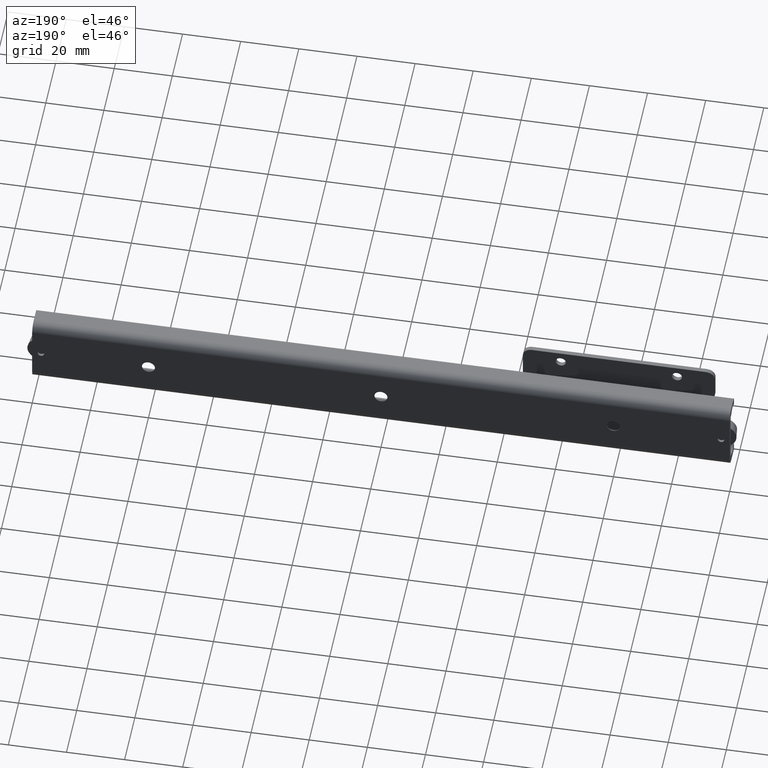
[diagram: clean part render]
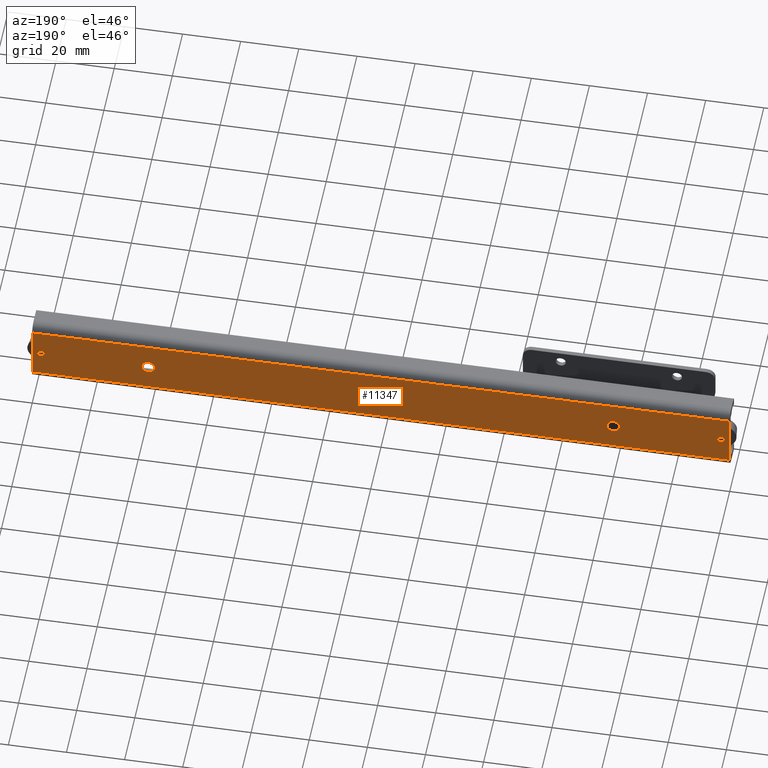
[diagram: same view with one face highlighted and labeled with its STEP entity id]
A machine part, auxiliary view. The second image highlights one B-rep face of the part: STEP entity #11347.
In plain terms, the highlighted face is a freeform B-spline surface patch.
Its self-contained STEP definition (entity closure, byte-faithful):
#9783=CARTESIAN_POINT('',(237.0,0.0,1.150000000000000));
#9784=VERTEX_POINT('',#9783);
#9785=CARTESIAN_POINT('',(235.853545066666610,-1.387779E-016,0.090227965929010));
#9786=VERTEX_POINT('',#9785);
#9787=CARTESIAN_POINT('',(237.0,0.0,1.150000000000000));
#9788=CARTESIAN_POINT('',(235.936950940026830,0.0,1.150000000000000));
#9789=CARTESIAN_POINT('',(235.853545066666640,0.0,0.090227965929010));
#9797=(BOUNDED_CURVE()B_SPLINE_CURVE(2,(#9787,#9788,#9789),.UNSPECIFIED.,.F.,.U.)B_SPLINE_CURVE_WITH_KNOTS((3,3),(0.0,0.236331299759240),.UNSPECIFIED.)CURVE()GEOMETRIC_REPRESENTATION_ITEM()RATIONAL_B_SPLINE_CURVE((1.0,0.723120659628598,0.969723354348830))REPRESENTATION_ITEM(''));
#9798=EDGE_CURVE('',#9784,#9786,#9797,.T.);
#9800=CARTESIAN_POINT('',(238.146454933333300,-1.387779E-016,-0.090227965929008));
#9801=VERTEX_POINT('',#9800);
#9802=CARTESIAN_POINT('',(238.146454933333330,0.0,-0.090227965929008));
#9803=CARTESIAN_POINT('',(238.149999999999980,0.0,-0.045183625993369));
#9804=CARTESIAN_POINT('',(238.150000000000010,0.0,0.0));
#9805=CARTESIAN_POINT('',(238.150000000000030,0.0,1.150000000000000));
#9806=CARTESIAN_POINT('',(237.0,0.0,1.150000000000000));
#9814=(BOUNDED_CURVE()B_SPLINE_CURVE(2,(#9802,#9803,#9804,#9805,#9806),.UNSPECIFIED.,.F.,.U.)B_SPLINE_CURVE_WITH_KNOTS((3,2,3),(0.736331299759240,0.750000000000000,1.0),.UNSPECIFIED.)CURVE()GEOMETRIC_REPRESENTATION_ITEM()RATIONAL_B_SPLINE_CURVE((0.969723354348831,0.983986121557950,1.0,0.707106781186547,1.0))REPRESENTATION_ITEM(''));
#9815=EDGE_CURVE('',#9801,#9784,#9814,.T.);
#9882=CARTESIAN_POINT('',(237.0,0.0,-1.150000000000000));
#9883=VERTEX_POINT('',#9882);
#9884=CARTESIAN_POINT('',(235.853545066666640,0.0,0.090227965929010));
#9885=CARTESIAN_POINT('',(235.849999999999970,0.0,0.045183625993369));
#9886=CARTESIAN_POINT('',(235.849999999999990,0.0,0.0));
#9887=CARTESIAN_POINT('',(235.849999999999990,0.0,-1.150000000000000));
#9888=CARTESIAN_POINT('',(237.0,0.0,-1.150000000000000));
#9896=(BOUNDED_CURVE()B_SPLINE_CURVE(2,(#9884,#9885,#9886,#9887,#9888),.UNSPECIFIED.,.F.,.U.)B_SPLINE_CURVE_WITH_KNOTS((3,2,3),(0.236331299759240,0.250000000000000,0.500000000000000),.UNSPECIFIED.)CURVE()GEOMETRIC_REPRESENTATION_ITEM()RATIONAL_B_SPLINE_CURVE((0.969723354348830,0.983986121557950,1.0,0.707106781186547,1.0))REPRESENTATION_ITEM(''));
#9897=EDGE_CURVE('',#9786,#9883,#9896,.T.);
#9931=CARTESIAN_POINT('',(237.0,0.0,-1.150000000000000));
#9932=CARTESIAN_POINT('',(238.063049059973220,0.0,-1.150000000000000));
#9933=CARTESIAN_POINT('',(238.146454933333300,0.0,-0.090227965929010));
#9941=(BOUNDED_CURVE()B_SPLINE_CURVE(2,(#9931,#9932,#9933),.UNSPECIFIED.,.F.,.U.)B_SPLINE_CURVE_WITH_KNOTS((3,3),(0.500000000000000,0.736331299759239),.UNSPECIFIED.)CURVE()GEOMETRIC_REPRESENTATION_ITEM()RATIONAL_B_SPLINE_CURVE((1.0,0.723120659628598,0.969723354348830))REPRESENTATION_ITEM(''));
#9942=EDGE_CURVE('',#9883,#9801,#9941,.T.);
#9965=CARTESIAN_POINT('',(3.0,0.0,1.150000000000000));
#9966=VERTEX_POINT('',#9965);
#9967=CARTESIAN_POINT('',(1.853545066666678,-1.387779E-016,0.090227965929009));
#9968=VERTEX_POINT('',#9967);
#9969=CARTESIAN_POINT('',(3.0,0.0,1.150000000000000));
#9970=CARTESIAN_POINT('',(1.936950940026789,0.0,1.150000000000000));
#9971=CARTESIAN_POINT('',(1.853545066666677,0.0,0.090227965929009));
#9979=(BOUNDED_CURVE()B_SPLINE_CURVE(2,(#9969,#9970,#9971),.UNSPECIFIED.,.F.,.U.)B_SPLINE_CURVE_WITH_KNOTS((3,3),(0.0,0.236331299759240),.UNSPECIFIED.)CURVE()GEOMETRIC_REPRESENTATION_ITEM()RATIONAL_B_SPLINE_CURVE((1.0,0.723120659628598,0.969723354348831))REPRESENTATION_ITEM(''));
#9980=EDGE_CURVE('',#9966,#9968,#9979,.T.);
#9982=CARTESIAN_POINT('',(4.146454933333322,-1.387779E-016,-0.090227965929009));
#9983=VERTEX_POINT('',#9982);
#9984=CARTESIAN_POINT('',(4.146454933333325,0.0,-0.090227965929010));
#9985=CARTESIAN_POINT('',(4.150000000000000,0.0,-0.045183625993369));
#9986=CARTESIAN_POINT('',(4.150000000000000,0.0,0.0));
#9987=CARTESIAN_POINT('',(4.150000000000000,0.0,1.150000000000000));
#9988=CARTESIAN_POINT('',(3.0,0.0,1.150000000000000));
#9996=(BOUNDED_CURVE()B_SPLINE_CURVE(2,(#9984,#9985,#9986,#9987,#9988),.UNSPECIFIED.,.F.,.U.)B_SPLINE_CURVE_WITH_KNOTS((3,2,3),(0.736331299759240,0.750000000000000,1.0),.UNSPECIFIED.)CURVE()GEOMETRIC_REPRESENTATION_ITEM()RATIONAL_B_SPLINE_CURVE((0.969723354348830,0.983986121557950,1.0,0.707106781186547,1.0))REPRESENTATION_ITEM(''));
#9997=EDGE_CURVE('',#9983,#9966,#9996,.T.);
#10064=CARTESIAN_POINT('',(3.0,0.0,-1.150000000000000));
#10065=VERTEX_POINT('',#10064);
#10066=CARTESIAN_POINT('',(1.853545066666677,0.0,0.090227965929009));
#10067=CARTESIAN_POINT('',(1.850000000000000,0.0,0.045183625993369));
#10068=CARTESIAN_POINT('',(1.850000000000000,0.0,0.0));
#10069=CARTESIAN_POINT('',(1.850000000000000,0.0,-1.150000000000000));
#10070=CARTESIAN_POINT('',(3.0,0.0,-1.150000000000000));
#10078=(BOUNDED_CURVE()B_SPLINE_CURVE(2,(#10066,#10067,#10068,#10069,#10070),.UNSPECIFIED.,.F.,.U.)B_SPLINE_CURVE_WITH_KNOTS((3,2,3),(0.236331299759240,0.250000000000000,0.500000000000000),.UNSPECIFIED.)CURVE()GEOMETRIC_REPRESENTATION_ITEM()RATIONAL_B_SPLINE_CURVE((0.969723354348831,0.983986121557950,1.0,0.707106781186547,1.0))REPRESENTATION_ITEM(''));
#10079=EDGE_CURVE('',#9968,#10065,#10078,.T.);
#10113=CARTESIAN_POINT('',(3.0,0.0,-1.150000000000000));
#10114=CARTESIAN_POINT('',(4.063049059973211,0.0,-1.150000000000000));
#10115=CARTESIAN_POINT('',(4.146454933333325,0.0,-0.090227965929010));
#10123=(BOUNDED_CURVE()B_SPLINE_CURVE(2,(#10113,#10114,#10115),.UNSPECIFIED.,.F.,.U.)B_SPLINE_CURVE_WITH_KNOTS((3,3),(0.500000000000000,0.736331299759240),.UNSPECIFIED.)CURVE()GEOMETRIC_REPRESENTATION_ITEM()RATIONAL_B_SPLINE_CURVE((1.0,0.723120659628598,0.969723354348830))REPRESENTATION_ITEM(''));
#10124=EDGE_CURVE('',#10065,#9983,#10123,.T.);
#10147=CARTESIAN_POINT('',(42.245803296253619,2.989608E-014,-0.137359217151128));
#10148=VERTEX_POINT('',#10147);
#10188=CARTESIAN_POINT('',(37.754196703746381,2.990475E-014,0.137359217151127));
#10189=VERTEX_POINT('',#10188);
#10195=CARTESIAN_POINT('',(40.0,2.990027E-014,2.250000000000000));
#10196=VERTEX_POINT('',#10195);
#10197=CARTESIAN_POINT('',(40.0,2.990027E-014,2.250000000000000));
#10198=CARTESIAN_POINT('',(37.883411352481545,2.990027E-014,2.250000000000000));
#10199=CARTESIAN_POINT('',(37.754196703746373,2.990027E-014,0.137359217151127));
#10207=(BOUNDED_CURVE()B_SPLINE_CURVE(2,(#10197,#10198,#10199),.UNSPECIFIED.,.F.,.U.)B_SPLINE_CURVE_WITH_KNOTS((3,3),(0.500000000000000,0.739332961996287),.UNSPECIFIED.)CURVE()GEOMETRIC_REPRESENTATION_ITEM()RATIONAL_B_SPLINE_CURVE((1.0,0.719603993571000,0.976072041146659))REPRESENTATION_ITEM(''));
#10208=EDGE_CURVE('',#10196,#10189,#10207,.T.);
#10210=CARTESIAN_POINT('',(42.245803296253619,2.990027E-014,-0.137359217151128));
#10211=CARTESIAN_POINT('',(42.250000000000000,2.990027E-014,-0.068743719025158));
#10212=CARTESIAN_POINT('',(42.250000000000000,2.990027E-014,0.0));
#10213=CARTESIAN_POINT('',(42.250000000000000,2.990027E-014,2.250000000000000));
#10214=CARTESIAN_POINT('',(40.0,2.990027E-014,2.250000000000000));
#10222=(BOUNDED_CURVE()B_SPLINE_CURVE(2,(#10210,#10211,#10212,#10213,#10214),.UNSPECIFIED.,.F.,.U.)B_SPLINE_CURVE_WITH_KNOTS((3,2,3),(0.239332961996287,0.250000000000000,0.500000000000000),.UNSPECIFIED.)CURVE()GEOMETRIC_REPRESENTATION_ITEM()RATIONAL_B_SPLINE_CURVE((0.976072041146659,0.987502787615548,1.0,0.707106781186547,1.0))REPRESENTATION_ITEM(''));
#10223=EDGE_CURVE('',#10148,#10196,#10222,.T.);
#10247=CARTESIAN_POINT('',(40.0,2.990027E-014,-2.250000000000000));
#10248=VERTEX_POINT('',#10247);
#10249=CARTESIAN_POINT('',(40.0,2.990027E-014,-2.250000000000000));
#10250=CARTESIAN_POINT('',(42.116588647518455,2.990027E-014,-2.250000000000000));
#10251=CARTESIAN_POINT('',(42.245803296253619,2.990027E-014,-0.137359217151128));
#10259=(BOUNDED_CURVE()B_SPLINE_CURVE(2,(#10249,#10250,#10251),.UNSPECIFIED.,.F.,.U.)B_SPLINE_CURVE_WITH_KNOTS((3,3),(0.0,0.239332961996287),.UNSPECIFIED.)CURVE()GEOMETRIC_REPRESENTATION_ITEM()RATIONAL_B_SPLINE_CURVE((1.0,0.719603993571000,0.976072041146659))REPRESENTATION_ITEM(''));
#10260=EDGE_CURVE('',#10248,#10148,#10259,.T.);
#10262=CARTESIAN_POINT('',(37.754196703746373,2.990027E-014,0.137359217151127));
#10263=CARTESIAN_POINT('',(37.750000000000000,2.990027E-014,0.068743719025158));
#10264=CARTESIAN_POINT('',(37.750000000000000,2.990027E-014,0.0));
#10265=CARTESIAN_POINT('',(37.750000000000007,2.990027E-014,-2.250000000000000));
#10266=CARTESIAN_POINT('',(40.0,2.990027E-014,-2.250000000000000));
#10274=(BOUNDED_CURVE()B_SPLINE_CURVE(2,(#10262,#10263,#10264,#10265,#10266),.UNSPECIFIED.,.F.,.U.)B_SPLINE_CURVE_WITH_KNOTS((3,2,3),(0.739332961996287,0.750000000000000,1.0),.UNSPECIFIED.)CURVE()GEOMETRIC_REPRESENTATION_ITEM()RATIONAL_B_SPLINE_CURVE((0.976072041146659,0.987502787615548,1.0,0.707106781186547,1.0))REPRESENTATION_ITEM(''));
#10275=EDGE_CURVE('',#10189,#10248,#10274,.T.);
#10451=CARTESIAN_POINT('',(122.245803296253600,3.876052E-014,-0.137359217151128));
#10452=VERTEX_POINT('',#10451);
#10492=CARTESIAN_POINT('',(117.754196703746400,3.876052E-014,0.137359217151128));
#10493=VERTEX_POINT('',#10492);
#10499=CARTESIAN_POINT('',(120.0,3.875517E-014,2.250000000000000));
#10500=VERTEX_POINT('',#10499);
#10501=CARTESIAN_POINT('',(120.0,3.875517E-014,2.250000000000000));
#10502=CARTESIAN_POINT('',(117.883411352481530,3.875517E-014,2.250000000000001));
#10503=CARTESIAN_POINT('',(117.754196703746370,3.875517E-014,0.137359217151129));
#10511=(BOUNDED_CURVE()B_SPLINE_CURVE(2,(#10501,#10502,#10503),.UNSPECIFIED.,.F.,.U.)B_SPLINE_CURVE_WITH_KNOTS((3,3),(0.500000000000000,0.739332961996287),.UNSPECIFIED.)CURVE()GEOMETRIC_REPRESENTATION_ITEM()RATIONAL_B_SPLINE_CURVE((1.0,0.719603993571000,0.976072041146659))REPRESENTATION_ITEM(''));
#10512=EDGE_CURVE('',#10500,#10493,#10511,.T.);
#10514=CARTESIAN_POINT('',(122.245803296253670,3.875517E-014,-0.137359217151128));
#10515=CARTESIAN_POINT('',(122.249999999999990,3.875517E-014,-0.068743719025158));
#10516=CARTESIAN_POINT('',(122.250000000000000,3.875517E-014,0.0));
#10517=CARTESIAN_POINT('',(122.250000000000000,3.875517E-014,2.250000000000000));
#10518=CARTESIAN_POINT('',(120.0,3.875517E-014,2.250000000000000));
#10526=(BOUNDED_CURVE()B_SPLINE_CURVE(2,(#10514,#10515,#10516,#10517,#10518),.UNSPECIFIED.,.F.,.U.)B_SPLINE_CURVE_WITH_KNOTS((3,2,3),(0.239332961996287,0.250000000000000,0.500000000000000),.UNSPECIFIED.)CURVE()GEOMETRIC_REPRESENTATION_ITEM()RATIONAL_B_SPLINE_CURVE((0.976072041146659,0.987502787615548,1.0,0.707106781186547,1.0))REPRESENTATION_ITEM(''));
#10527=EDGE_CURVE('',#10452,#10500,#10526,.T.);
#10551=CARTESIAN_POINT('',(120.0,3.875517E-014,-2.250000000000000));
#10552=VERTEX_POINT('',#10551);
#10553=CARTESIAN_POINT('',(120.0,3.875517E-014,-2.250000000000000));
#10554=CARTESIAN_POINT('',(122.116588647518470,3.875517E-014,-2.250000000000000));
#10555=CARTESIAN_POINT('',(122.245803296253670,3.875517E-014,-0.137359217151128));
#10563=(BOUNDED_CURVE()B_SPLINE_CURVE(2,(#10553,#10554,#10555),.UNSPECIFIED.,.F.,.U.)B_SPLINE_CURVE_WITH_KNOTS((3,3),(0.0,0.239332961996287),.UNSPECIFIED.)CURVE()GEOMETRIC_REPRESENTATION_ITEM()RATIONAL_B_SPLINE_CURVE((1.0,0.719603993571000,0.976072041146659))REPRESENTATION_ITEM(''));
#10564=EDGE_CURVE('',#10552,#10452,#10563,.T.);
#10566=CARTESIAN_POINT('',(117.754196703746370,3.875517E-014,0.137359217151129));
#10567=CARTESIAN_POINT('',(117.749999999999960,3.875517E-014,0.068743719025158));
#10568=CARTESIAN_POINT('',(117.750000000000000,3.875517E-014,0.0));
#10569=CARTESIAN_POINT('',(117.750000000000000,3.875517E-014,-2.250000000000000));
#10570=CARTESIAN_POINT('',(120.0,3.875517E-014,-2.250000000000000));
#10578=(BOUNDED_CURVE()B_SPLINE_CURVE(2,(#10566,#10567,#10568,#10569,#10570),.UNSPECIFIED.,.F.,.U.)B_SPLINE_CURVE_WITH_KNOTS((3,2,3),(0.739332961996287,0.750000000000000,1.0),.UNSPECIFIED.)CURVE()GEOMETRIC_REPRESENTATION_ITEM()RATIONAL_B_SPLINE_CURVE((0.976072041146659,0.987502787615548,1.0,0.707106781186547,1.0))REPRESENTATION_ITEM(''));
#10579=EDGE_CURVE('',#10493,#10552,#10578,.T.);
#10755=CARTESIAN_POINT('',(202.245803296253600,4.791046E-014,-0.137359217151127));
#10756=VERTEX_POINT('',#10755);
#10796=CARTESIAN_POINT('',(197.754196703746400,4.791046E-014,0.137359217151128));
#10797=VERTEX_POINT('',#10796);
#10803=CARTESIAN_POINT('',(200.0,4.790612E-014,2.250000000000000));
#10804=VERTEX_POINT('',#10803);
#10805=CARTESIAN_POINT('',(200.0,4.790612E-014,2.250000000000000));
#10806=CARTESIAN_POINT('',(197.883411352481600,4.790612E-014,2.250000000000000));
#10807=CARTESIAN_POINT('',(197.754196703746350,4.790612E-014,0.137359217151130));
#10815=(BOUNDED_CURVE()B_SPLINE_CURVE(2,(#10805,#10806,#10807),.UNSPECIFIED.,.F.,.U.)B_SPLINE_CURVE_WITH_KNOTS((3,3),(0.500000000000000,0.739332961996286),.UNSPECIFIED.)CURVE()GEOMETRIC_REPRESENTATION_ITEM()RATIONAL_B_SPLINE_CURVE((1.0,0.719603993571000,0.976072041146659))REPRESENTATION_ITEM(''));
#10816=EDGE_CURVE('',#10804,#10797,#10815,.T.);
#10818=CARTESIAN_POINT('',(202.245803296253600,4.790612E-014,-0.137359217151129));
#10819=CARTESIAN_POINT('',(202.249999999999970,4.790612E-014,-0.068743719025158));
#10820=CARTESIAN_POINT('',(202.250000000000000,4.790612E-014,0.0));
#10821=CARTESIAN_POINT('',(202.249999999999970,4.790612E-014,2.250000000000000));
#10822=CARTESIAN_POINT('',(200.0,4.790612E-014,2.250000000000000));
#10830=(BOUNDED_CURVE()B_SPLINE_CURVE(2,(#10818,#10819,#10820,#10821,#10822),.UNSPECIFIED.,.F.,.U.)B_SPLINE_CURVE_WITH_KNOTS((3,2,3),(0.239332961996287,0.250000000000000,0.500000000000000),.UNSPECIFIED.)CURVE()GEOMETRIC_REPRESENTATION_ITEM()RATIONAL_B_SPLINE_CURVE((0.976072041146659,0.987502787615548,1.0,0.707106781186547,1.0))REPRESENTATION_ITEM(''));
#10831=EDGE_CURVE('',#10756,#10804,#10830,.T.);
#10855=CARTESIAN_POINT('',(200.0,4.790612E-014,-2.250000000000000));
#10856=VERTEX_POINT('',#10855);
#10857=CARTESIAN_POINT('',(200.0,4.790612E-014,-2.250000000000000));
#10858=CARTESIAN_POINT('',(202.116588647518540,4.790612E-014,-2.250000000000001));
#10859=CARTESIAN_POINT('',(202.245803296253600,4.790612E-014,-0.137359217151129));
#10867=(BOUNDED_CURVE()B_SPLINE_CURVE(2,(#10857,#10858,#10859),.UNSPECIFIED.,.F.,.U.)B_SPLINE_CURVE_WITH_KNOTS((3,3),(0.0,0.239332961996287),.UNSPECIFIED.)CURVE()GEOMETRIC_REPRESENTATION_ITEM()RATIONAL_B_SPLINE_CURVE((1.0,0.719603993571000,0.976072041146659))REPRESENTATION_ITEM(''));
#10868=EDGE_CURVE('',#10856,#10756,#10867,.T.);
#10870=CARTESIAN_POINT('',(197.754196703746350,4.790612E-014,0.137359217151130));
#10871=CARTESIAN_POINT('',(197.749999999999970,4.790612E-014,0.068743719025159));
#10872=CARTESIAN_POINT('',(197.750000000000000,4.790612E-014,0.0));
#10873=CARTESIAN_POINT('',(197.750000000000060,4.790612E-014,-2.250000000000000));
#10874=CARTESIAN_POINT('',(200.0,4.790612E-014,-2.250000000000000));
#10882=(BOUNDED_CURVE()B_SPLINE_CURVE(2,(#10870,#10871,#10872,#10873,#10874),.UNSPECIFIED.,.F.,.U.)B_SPLINE_CURVE_WITH_KNOTS((3,2,3),(0.739332961996286,0.750000000000000,1.0),.UNSPECIFIED.)CURVE()GEOMETRIC_REPRESENTATION_ITEM()RATIONAL_B_SPLINE_CURVE((0.976072041146659,0.987502787615548,1.0,0.707106781186547,1.0))REPRESENTATION_ITEM(''));
#10883=EDGE_CURVE('',#10797,#10856,#10882,.T.);
#11251=CARTESIAN_POINT('',(0.0,1.421085E-014,-9.500000000119091));
#11252=VERTEX_POINT('',#11251);
#11266=CARTESIAN_POINT('',(240.0,1.421085E-014,-9.500000000119091));
#11267=VERTEX_POINT('',#11266);
#11268=CARTESIAN_POINT('',(240.0,1.421085E-014,-9.500000000119091));
#11269=CARTESIAN_POINT('',(0.0,1.421085E-014,-9.500000000119091));
#11270=QUASI_UNIFORM_CURVE('',1,(#11268,#11269),.UNSPECIFIED.,.F.,.U.);
#11271=EDGE_CURVE('',#11267,#11252,#11270,.T.);
#11290=CARTESIAN_POINT('',(-11.987999534833440,-1.421085E-014,-10.449049963293410));
#11291=CARTESIAN_POINT('',(-11.987999534833440,-1.421085E-014,10.449050472674941));
#11292=CARTESIAN_POINT('',(251.988005972135110,-1.421085E-014,-10.449049963293410));
#11293=CARTESIAN_POINT('',(251.988005972135110,-1.421085E-014,10.449050472674941));
#11294=B_SPLINE_SURFACE_WITH_KNOTS('',1,1,((#11290,#11292),(#11291,#11293)),.UNSPECIFIED.,.F.,.F.,.U.,(2,2),(2,2),(0.0,20.898100435968349),(0.0,263.976005506968480),.UNSPECIFIED.);
#11295=CARTESIAN_POINT('',(0.0,-1.421085E-014,9.499999999880911));
#11296=VERTEX_POINT('',#11295);
#11297=CARTESIAN_POINT('',(0.0,-1.421085E-014,9.499999999880911));
#11298=CARTESIAN_POINT('',(0.0,1.421085E-014,-9.500000000119091));
#11299=QUASI_UNIFORM_CURVE('',1,(#11297,#11298),.UNSPECIFIED.,.F.,.U.);
#11300=EDGE_CURVE('',#11296,#11252,#11299,.T.);
#11301=ORIENTED_EDGE('',*,*,#11300,.F.);
#11302=CARTESIAN_POINT('',(240.0,-1.421085E-014,9.499999999880911));
#11303=VERTEX_POINT('',#11302);
#11304=CARTESIAN_POINT('',(240.0,-1.421085E-014,9.499999999880911));
#11305=CARTESIAN_POINT('',(0.0,-1.421085E-014,9.499999999880911));
#11306=QUASI_UNIFORM_CURVE('',1,(#11304,#11305),.UNSPECIFIED.,.F.,.U.);
#11307=EDGE_CURVE('',#11303,#11296,#11306,.T.);
#11308=ORIENTED_EDGE('',*,*,#11307,.F.);
#11309=CARTESIAN_POINT('',(240.0,-1.421085E-014,9.499999999880911));
#11310=CARTESIAN_POINT('',(240.0,1.421085E-014,-9.500000000119091));
#11311=QUASI_UNIFORM_CURVE('',1,(#11309,#11310),.UNSPECIFIED.,.F.,.U.);
#11312=EDGE_CURVE('',#11303,#11267,#11311,.T.);
#11313=ORIENTED_EDGE('',*,*,#11312,.T.);
#11314=ORIENTED_EDGE('',*,*,#11271,.T.);
#11315=EDGE_LOOP('',(#11301,#11308,#11313,#11314));
#11316=FACE_OUTER_BOUND('',#11315,.T.);
#11317=ORIENTED_EDGE('',*,*,#10816,.T.);
#11318=ORIENTED_EDGE('',*,*,#10883,.T.);
#11319=ORIENTED_EDGE('',*,*,#10868,.T.);
#11320=ORIENTED_EDGE('',*,*,#10831,.T.);
#11321=EDGE_LOOP('',(#11317,#11318,#11319,#11320));
#11322=FACE_BOUND('',#11321,.T.);
#11323=ORIENTED_EDGE('',*,*,#10512,.T.);
#11324=ORIENTED_EDGE('',*,*,#10579,.T.);
#11325=ORIENTED_EDGE('',*,*,#10564,.T.);
#11326=ORIENTED_EDGE('',*,*,#10527,.T.);
#11327=EDGE_LOOP('',(#11323,#11324,#11325,#11326));
#11328=FACE_BOUND('',#11327,.T.);
#11329=ORIENTED_EDGE('',*,*,#10208,.T.);
#11330=ORIENTED_EDGE('',*,*,#10275,.T.);
#11331=ORIENTED_EDGE('',*,*,#10260,.T.);
#11332=ORIENTED_EDGE('',*,*,#10223,.T.);
#11333=EDGE_LOOP('',(#11329,#11330,#11331,#11332));
#11334=FACE_BOUND('',#11333,.T.);
#11335=ORIENTED_EDGE('',*,*,#10124,.T.);
#11336=ORIENTED_EDGE('',*,*,#9997,.T.);
#11337=ORIENTED_EDGE('',*,*,#9980,.T.);
#11338=ORIENTED_EDGE('',*,*,#10079,.T.);
#11339=EDGE_LOOP('',(#11335,#11336,#11337,#11338));
#11340=FACE_BOUND('',#11339,.T.);
#11341=ORIENTED_EDGE('',*,*,#9942,.T.);
#11342=ORIENTED_EDGE('',*,*,#9815,.T.);
#11343=ORIENTED_EDGE('',*,*,#9798,.T.);
#11344=ORIENTED_EDGE('',*,*,#9897,.T.);
#11345=EDGE_LOOP('',(#11341,#11342,#11343,#11344));
#11346=FACE_BOUND('',#11345,.T.);
#11347=ADVANCED_FACE('',(#11316,#11322,#11328,#11334,#11340,#11346),#11294,.T.);